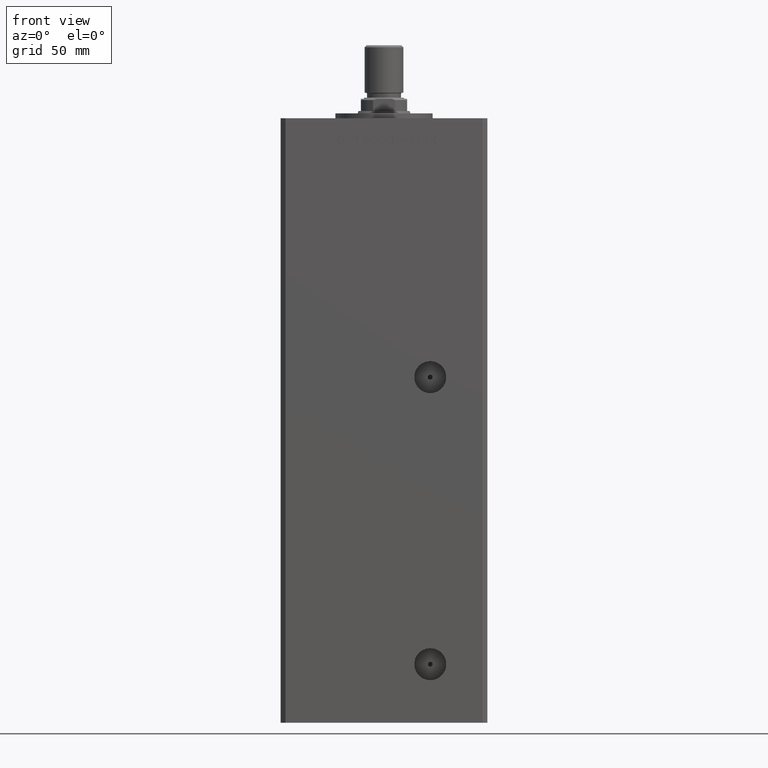
[diagram: clean part render]
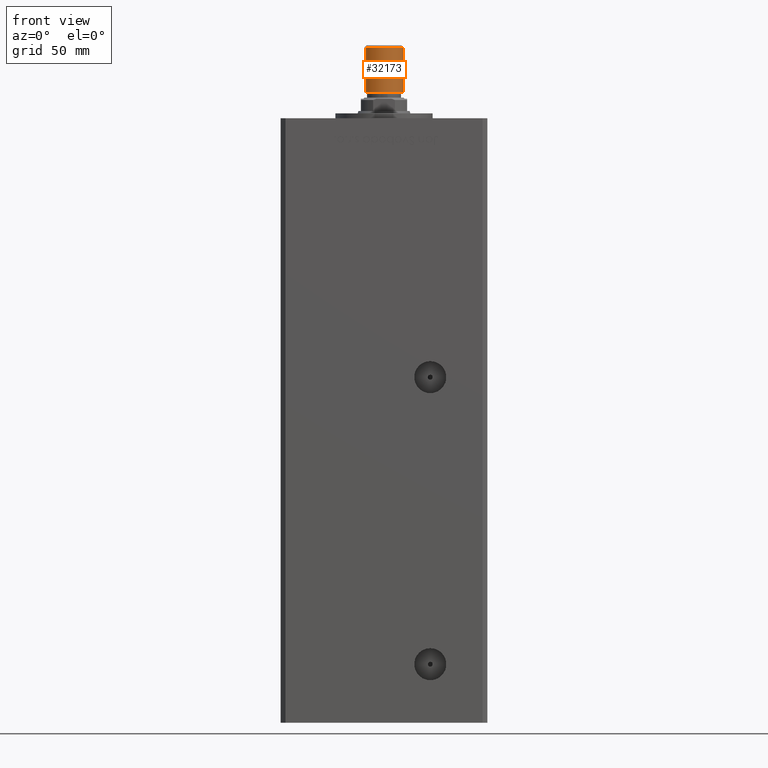
[diagram: same view with one face highlighted and labeled with its STEP entity id]
A machine part, front view. The second image highlights one B-rep face of the part: STEP entity #32173.
In plain terms, the highlighted cylindrical surface (edge-blend (fillet) strip) has radius 8 mm, axis along (0, 0, 1).
Its self-contained STEP definition (entity closure, byte-faithful):
#578 = AXIS2_PLACEMENT_3D ( 'NONE', #5982, #39059, #6749 ) ;
#2998 = CIRCLE ( 'NONE', #49527, 8.000000000000000000 ) ;
#5982 = CARTESIAN_POINT ( 'NONE',  ( 0.000000000000000000, 0.000000000000000000, 0.8000000000000055955 ) ) ;
#6278 = ORIENTED_EDGE ( 'NONE', *, *, #50647, .T. ) ;
#6749 = DIRECTION ( 'NONE',  ( 1.000000000000000000, 0.000000000000000000, 0.000000000000000000 ) ) ;
#9221 = LINE ( 'NONE', #17427, #47476 ) ;
#9899 = EDGE_CURVE ( 'NONE', #52457, #40403, #9221, .T. ) ;
#10342 = EDGE_LOOP ( 'NONE', ( #17150, #23958, #24195, #6278 ) ) ;
#10953 = VERTEX_POINT ( 'NONE', #37243 ) ;
#11958 = DIRECTION ( 'NONE',  ( 1.000000000000000000, 0.000000000000000000, 0.000000000000000000 ) ) ;
#13144 = DIRECTION ( 'NONE',  ( -0.000000000000000000, -0.000000000000000000, -1.000000000000000000 ) ) ;
#13320 = DIRECTION ( 'NONE',  ( -1.000000000000000000, 0.000000000000000000, 0.000000000000000000 ) ) ;
#13842 = FACE_OUTER_BOUND ( 'NONE', #10342, .T. ) ;
#16199 = CARTESIAN_POINT ( 'NONE',  ( 0.000000000000000000, 0.000000000000000000, 19.50000000000000000 ) ) ;
#16634 = CIRCLE ( 'NONE', #578, 8.000000000000000000 ) ;
#17150 = ORIENTED_EDGE ( 'NONE', *, *, #47601, .F. ) ;
#17163 = DIRECTION ( 'NONE',  ( -0.000000000000000000, -0.000000000000000000, -1.000000000000000000 ) ) ;
#17427 = CARTESIAN_POINT ( 'NONE',  ( -8.000000000000000000, 0.000000000000000000, 19.50000000000000000 ) ) ;
#18512 = CARTESIAN_POINT ( 'NONE',  ( -8.000000000000000000, 0.000000000000000000, 19.50000000000000000 ) ) ;
#21165 = VERTEX_POINT ( 'NONE', #48450 ) ;
#21589 = AXIS2_PLACEMENT_3D ( 'NONE', #26040, #38230, #13320 ) ;
#22048 = CYLINDRICAL_SURFACE ( 'NONE', #21589, 8.000000000000000000 ) ;
#23310 = VECTOR ( 'NONE', #13144, 1000.000000000000000 ) ;
#23958 = ORIENTED_EDGE ( 'NONE', *, *, #40789, .F. ) ;
#24195 = ORIENTED_EDGE ( 'NONE', *, *, #9899, .T. ) ;
#26040 = CARTESIAN_POINT ( 'NONE',  ( 0.000000000000000000, 0.000000000000000000, 19.50000000000000000 ) ) ;
#29571 = CARTESIAN_POINT ( 'NONE',  ( 8.000000000000000000, 9.797174393178825657E-16, 19.50000000000000000 ) ) ;
#32173 = ADVANCED_FACE ( 'NONE', ( #13842 ), #22048, .T. ) ;
#37243 = CARTESIAN_POINT ( 'NONE',  ( 8.000000000000000000, 9.797174393178825657E-16, 19.50000000000000000 ) ) ;
#38230 = DIRECTION ( 'NONE',  ( -0.000000000000000000, -0.000000000000000000, -1.000000000000000000 ) ) ;
#39059 = DIRECTION ( 'NONE',  ( -0.000000000000000000, -0.000000000000000000, 1.000000000000000000 ) ) ;
#40403 = VERTEX_POINT ( 'NONE', #41171 ) ;
#40789 = EDGE_CURVE ( 'NONE', #52457, #10953, #2998, .T. ) ;
#41171 = CARTESIAN_POINT ( 'NONE',  ( -8.000000000000000000, 0.000000000000000000, 0.8000000000000055955 ) ) ;
#45222 = LINE ( 'NONE', #29571, #23310 ) ;
#45353 = DIRECTION ( 'NONE',  ( 0.000000000000000000, 0.000000000000000000, 1.000000000000000000 ) ) ;
#47476 = VECTOR ( 'NONE', #17163, 1000.000000000000000 ) ;
#47601 = EDGE_CURVE ( 'NONE', #10953, #21165, #45222, .T. ) ;
#48450 = CARTESIAN_POINT ( 'NONE',  ( 8.000000000000000000, 9.797174393178825657E-16, 0.8000000000000055955 ) ) ;
#49527 = AXIS2_PLACEMENT_3D ( 'NONE', #16199, #45353, #11958 ) ;
#50647 = EDGE_CURVE ( 'NONE', #40403, #21165, #16634, .T. ) ;
#52457 = VERTEX_POINT ( 'NONE', #18512 ) ;